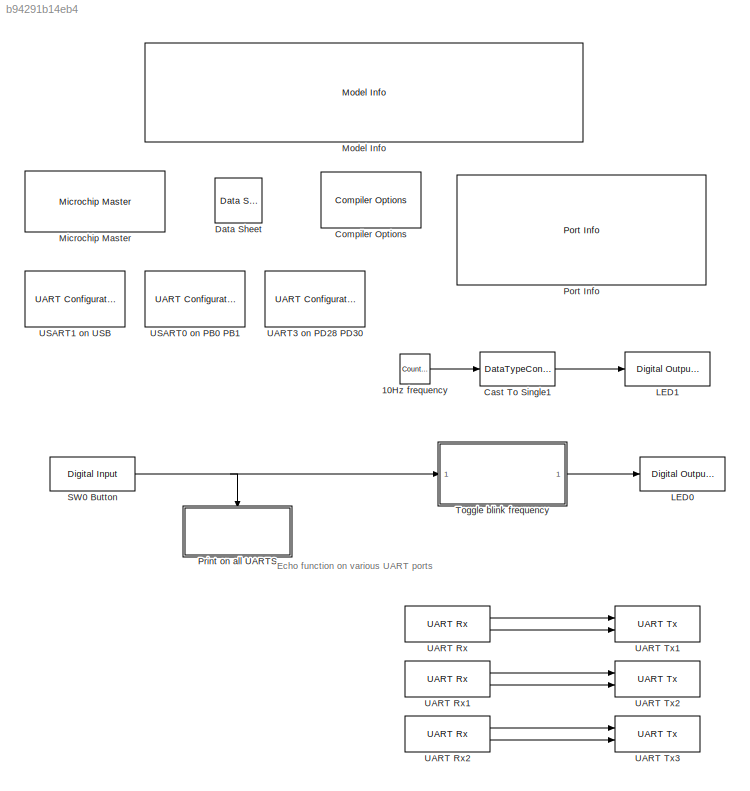
MODEL slx_b94291b14eb4
KIND model
CONFIG AbsTol = auto
CONFIG EnableMultiTasking = on
CONFIG FixedStep = 0.001
CONFIG MaxStep = auto
CONFIG MinStep = auto
CONFIG RelTol = 1e-3
CONFIG SampleTimeConstraint = Unconstrained
CONFIG SolverName = FixedStepDiscrete
CONFIG StartTime = 0.0
CONFIG StopTime = 1
BLOCK [Reference] 10Hz frequency  REF=simulink/Sources/Counter
Free-Running
  Ports = [0, 1]
  SourceBlock = simulink/Sources/Counter\nFree-Running
  SourceProductBaseCode = SL
  SourceType = Counter Free-Running
BLOCK [DataTypeConversion] Cast To Single1
  OutDataTypeStr = boolean
  RndMeth = Floor
  SaturateOnIntegerOverflow = off
BLOCK [Reference] Compiler Options  REF=MCHP_Blockset/System Configuration/Compiler Options
  Ports = []
  Priority = 1
  SourceBlock = MCHP_Blockset/System Configuration/Compiler Options
  SourceProductName = MPLAB Device Blocks for Simulink
BLOCK [Reference] Data Sheet  REF=MCHP_Blockset/System Info/Data Sheet
  AttributesFormatString = %<cpy_MCHP_Id>
  Ports = []
  SourceBlock = MCHP_Blockset/System Info/Data Sheet
  SourceProductName = MPLAB Device Blocks for Simulink
BLOCK [Reference] LED0  REF=MCHP_Blockset/Digital IO/Digital Output
Write
  Ports = [1]
  SourceBlock = MCHP_Blockset/Digital IO/Digital Output\nWrite
  SourceProductName = MPLAB Device Blocks for Simulink
  SourceType = Output driver for Digital Output Pins
BLOCK [Reference] LED1  REF=MCHP_Blockset/Digital IO/Digital Output
Write
  Ports = [1]
  SourceBlock = MCHP_Blockset/Digital IO/Digital Output\nWrite
  SourceProductName = MPLAB Device Blocks for Simulink
  SourceType = Output driver for Digital Output Pins
BLOCK [Reference] Microchip Master  REF=MCHP_Blockset/System Configuration/Microchip Master
  Ports = []
  Priority = 1
  SourceBlock = MCHP_Blockset/System Configuration/Microchip Master
  SourceProductName = MPLAB Device Blocks for Simulink
BLOCK [Reference] Model Info  REF=simulink/Model-Wide
Utilities/Model Info
  Ports = []
  SourceBlock = simulink/Model-Wide\nUtilities/Model Info
  SourceProductBaseCode = SL
  SourceType = CMBlock
BLOCK [Reference] Port Info  REF=MCHP_Blockset/System Info/Port Info
  Ports = []
  SourceBlock = MCHP_Blockset/System Info/Port Info
  SourceProductName = MPLAB Device Blocks for Simulink
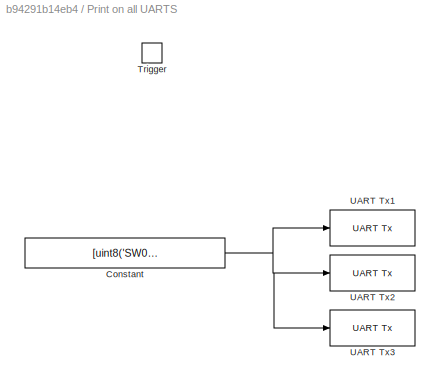
BLOCK [SubSystem] Print on all UARTS
  Ports = [0, 0, 0, 1]
  RequestExecContextInheritance = off
  TreatAsAtomicUnit = on
BLOCK [Constant] Print on all UARTS/Constant
  OutDataTypeStr = uint8
  SampleTime = -1
  Value = [uint8('SW0 Button Pressed ') 13 10 ]
BLOCK [TriggerPort] Print on all UARTS/Trigger
  PortDimensions = 1
  Ports = []
  StatesWhenEnabling = held
  VariantControl = Variant
BLOCK [Reference] Print on all UARTS/UART Tx1  REF=MCHP_Blockset/BUS UART/UART Tx
  Ports = [1]
  SourceBlock = MCHP_Blockset/BUS UART/UART Tx
  SourceProductName = MPLAB Device Blocks for Simulink
  SourceType = UART Tx Output Driver
BLOCK [Reference] Print on all UARTS/UART Tx2  REF=MCHP_Blockset/BUS UART/UART Tx
  Ports = [1]
  SourceBlock = MCHP_Blockset/BUS UART/UART Tx
  SourceProductName = MPLAB Device Blocks for Simulink
  SourceType = UART Tx Output Driver
BLOCK [Reference] Print on all UARTS/UART Tx3  REF=MCHP_Blockset/BUS UART/UART Tx
  Ports = [1]
  SourceBlock = MCHP_Blockset/BUS UART/UART Tx
  SourceProductName = MPLAB Device Blocks for Simulink
  SourceType = UART Tx Output Driver
BLOCK [Reference] SW0 Button  REF=MCHP_Blockset/Digital IO/Digital Input
  Ports = [0, 1]
  SourceBlock = MCHP_Blockset/Digital IO/Digital Input
  SourceProductName = MPLAB Device Blocks for Simulink
  SourceType = Input driver for Digital Input Pins
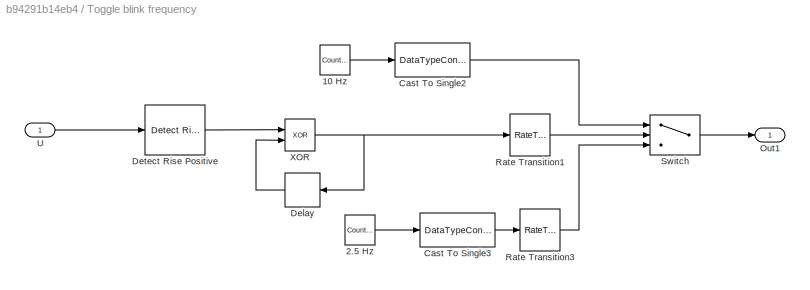
BLOCK [SubSystem] Toggle blink frequency
  Ports = [1, 1]
  RequestExecContextInheritance = off
BLOCK [Reference] Toggle blink frequency/10 Hz  REF=simulink/Sources/Counter
Free-Running
  Ports = [0, 1]
  SourceBlock = simulink/Sources/Counter\nFree-Running
  SourceProductBaseCode = SL
  SourceType = Counter Free-Running
BLOCK [Reference] Toggle blink frequency/2.5 Hz  REF=simulink/Sources/Counter
Free-Running
  Ports = [0, 1]
  SourceBlock = simulink/Sources/Counter\nFree-Running
  SourceProductBaseCode = SL
  SourceType = Counter Free-Running
BLOCK [DataTypeConversion] Toggle blink frequency/Cast To Single2
  OutDataTypeStr = boolean
  RndMeth = Floor
  SaturateOnIntegerOverflow = off
BLOCK [DataTypeConversion] Toggle blink frequency/Cast To Single3
  OutDataTypeStr = boolean
  RndMeth = Floor
  SaturateOnIntegerOverflow = off
BLOCK [Delay] Toggle blink frequency/Delay
  DelayLength = 1
  InitialCondition = 0
  InputPortMap = u0
  Ports = [1, 1]
BLOCK [Reference] Toggle blink frequency/Detect Rise Positive  REF=simulink/Logic and Bit
Operations/Detect Rise
Positive
  Ports = [1, 1]
  SourceBlock = simulink/Logic and Bit\nOperations/Detect Rise\nPositive
  SourceProductBaseCode = SL
  SourceType = Detect Rise Positive
BLOCK [Outport] Toggle blink frequency/Out1
BLOCK [RateTransition] Toggle blink frequency/Rate Transition1
BLOCK [RateTransition] Toggle blink frequency/Rate Transition3
BLOCK [Switch] Toggle blink frequency/Switch
  Criteria = u2 ~= 0
  InputSameDT = off
  SaturateOnIntegerOverflow = off
BLOCK [Inport] Toggle blink frequency/U
BLOCK [Logic] Toggle blink frequency/XOR
  AllPortsSameDT = off
  IconShape = distinctive
  Operator = XOR
  OutDataTypeStr = boolean
  Ports = [2, 1]
BLOCK [Reference] UART Rx  REF=MCHP_Blockset/BUS UART/UART Rx
  Ports = [0, 2]
  SourceBlock = MCHP_Blockset/BUS UART/UART Rx
  SourceProductName = MPLAB Device Blocks for Simulink
  SourceType = UART Rx Input Driver
BLOCK [Reference] UART Rx1  REF=MCHP_Blockset/BUS UART/UART Rx
  Ports = [0, 2]
  SourceBlock = MCHP_Blockset/BUS UART/UART Rx
  SourceProductName = MPLAB Device Blocks for Simulink
  SourceType = UART Rx Input Driver
BLOCK [Reference] UART Rx2  REF=MCHP_Blockset/BUS UART/UART Rx
  Ports = [0, 2]
  SourceBlock = MCHP_Blockset/BUS UART/UART Rx
  SourceProductName = MPLAB Device Blocks for Simulink
  SourceType = UART Rx Input Driver
BLOCK [Reference] UART Tx1  REF=MCHP_Blockset/BUS UART/UART Tx
  Ports = [2]
  SourceBlock = MCHP_Blockset/BUS UART/UART Tx
  SourceProductName = MPLAB Device Blocks for Simulink
  SourceType = UART Tx Output Driver
BLOCK [Reference] UART Tx2  REF=MCHP_Blockset/BUS UART/UART Tx
  Ports = [2]
  SourceBlock = MCHP_Blockset/BUS UART/UART Tx
  SourceProductName = MPLAB Device Blocks for Simulink
  SourceType = UART Tx Output Driver
BLOCK [Reference] UART Tx3  REF=MCHP_Blockset/BUS UART/UART Tx
  Ports = [2]
  SourceBlock = MCHP_Blockset/BUS UART/UART Tx
  SourceProductName = MPLAB Device Blocks for Simulink
  SourceType = UART Tx Output Driver
BLOCK [Reference] UART3 on PD28 PD30   REF=MCHP_Blockset/BUS UART/UART Configuration
  Ports = []
  SourceBlock = MCHP_Blockset/BUS UART/UART Configuration
  SourceProductName = MPLAB Device Blocks for Simulink
  SourceType = Configuration for UART peripheral
BLOCK [Reference] USART0 on PB0 PB1   REF=MCHP_Blockset/BUS UART/UART Configuration
  Ports = []
  SourceBlock = MCHP_Blockset/BUS UART/UART Configuration
  SourceProductName = MPLAB Device Blocks for Simulink
  SourceType = Configuration for UART peripheral
BLOCK [Reference] USART1 on USB  REF=MCHP_Blockset/BUS UART/UART Configuration
  Ports = []
  SourceBlock = MCHP_Blockset/BUS UART/UART Configuration
  SourceProductName = MPLAB Device Blocks for Simulink
  SourceType = Configuration for UART peripheral
ANNOTATION (root): Echo function on various UART ports
LINE 10Hz frequency:1 -> Cast To Single1:1
LINE Cast To Single1:1 -> LED1:1
NET Print on all UARTS/Constant:1 -> Print on all UARTS/UART Tx1:1, Print on all UARTS/UART Tx2:1, Print on all UARTS/UART Tx3:1
NET SW0 Button:1 -> Print on all UARTS:trigger, Toggle blink frequency:1
LINE Toggle blink frequency/10 Hz:1 -> Toggle blink frequency/Cast To Single2:1
LINE Toggle blink frequency/2.5 Hz:1 -> Toggle blink frequency/Cast To Single3:1
LINE Toggle blink frequency/Cast To Single2:1 -> Toggle blink frequency/Switch:1
LINE Toggle blink frequency/Cast To Single3:1 -> Toggle blink frequency/Rate Transition3:1
LINE Toggle blink frequency/Delay:1 -> Toggle blink frequency/XOR:2
LINE Toggle blink frequency/Detect Rise Positive:1 -> Toggle blink frequency/XOR:1
LINE Toggle blink frequency/Rate Transition1:1 -> Toggle blink frequency/Switch:2
LINE Toggle blink frequency/Rate Transition3:1 -> Toggle blink frequency/Switch:3
LINE Toggle blink frequency/Switch:1 -> Toggle blink frequency/Out1:1
LINE Toggle blink frequency/U:1 -> Toggle blink frequency/Detect Rise Positive:1
NET Toggle blink frequency/XOR:1 -> Toggle blink frequency/Delay:1, Toggle blink frequency/Rate Transition1:1
LINE Toggle blink frequency:1 -> LED0:1
LINE UART Rx1:1 -> UART Tx2:1
LINE UART Rx1:2 -> UART Tx2:2
LINE UART Rx2:1 -> UART Tx3:1
LINE UART Rx2:2 -> UART Tx3:2
LINE UART Rx:1 -> UART Tx1:1
LINE UART Rx:2 -> UART Tx1:2
note: NET lines group one-source signal fan-out (src -> all destinations, sorted); 1:1 wires keep LINE
